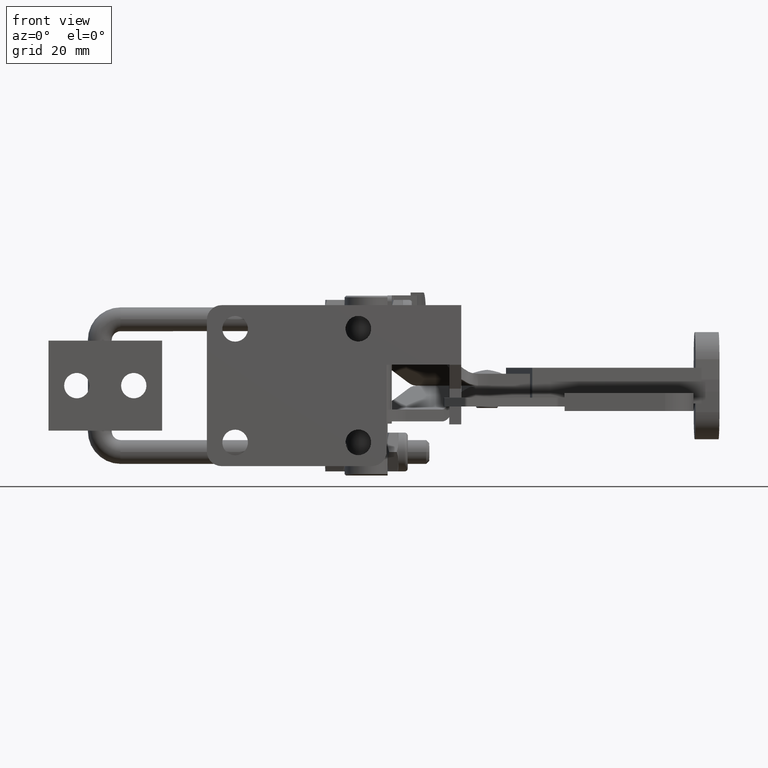
[diagram: clean part render]
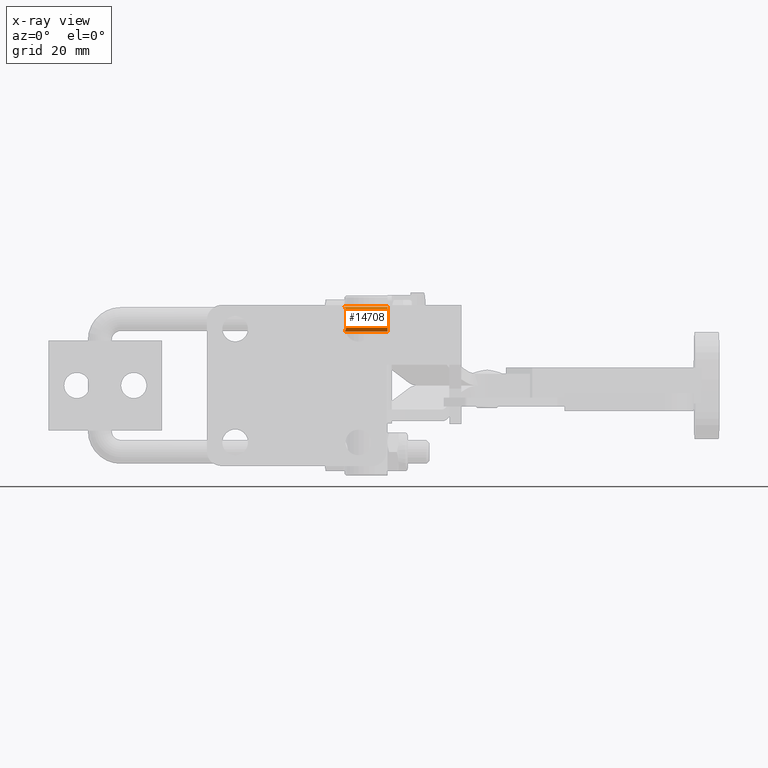
[diagram: x-ray — body ghosted, one internal face saturated and labeled with its STEP entity id]
A machine part, front view, then the same camera in x-ray: the body is ghosted and one INTERNAL B-rep face — a face not visible from any outside direction — is saturated and labeled: STEP entity #14708.
In plain terms, the highlighted cylindrical surface (edge-blend (fillet) strip) has radius 4.15 mm, axis along (1, -0.0064, 0).
Its self-contained STEP definition (entity closure, byte-faithful):
#214 = CARTESIAN_POINT ( 'NONE',  ( 46.21052842618281900, 22.59631237491669600, 26.39999999999997700 ) ) ;
#263 = CARTESIAN_POINT ( 'NONE',  ( 47.11993625435486900, 19.14256908943635000, 20.39767684190727300 ) ) ;
#314 = CARTESIAN_POINT ( 'NONE',  ( 46.61350516073486700, 20.32445666983163000, 18.96106573919030000 ) ) ;
#928 = VERTEX_POINT ( 'NONE', #9760 ) ;
#1403 = CARTESIAN_POINT ( 'NONE',  ( 46.22369280898651300, 22.31576002700079200, 26.37170119858102200 ) ) ;
#1418 = AXIS2_PLACEMENT_3D ( 'NONE', #10223, #1993, #4338 ) ;
#1463 = CARTESIAN_POINT ( 'NONE',  ( 47.36366648088463900, 18.71428541655567200, 21.98073937891798800 ) ) ;
#1502 = VECTOR ( 'NONE', #14113, 999.9999999999998900 ) ;
#1509 = CARTESIAN_POINT ( 'NONE',  ( 46.41802485727175300, 21.01155030266013000, 18.52993668177546400 ) ) ;
#1993 = DIRECTION ( 'NONE',  ( -0.9999793401632586200, 0.006428004873534682300, -2.459677983326398100E-016 ) ) ;
#2325 = VERTEX_POINT ( 'NONE', #13342 ) ;
#2588 = CARTESIAN_POINT ( 'NONE',  ( 46.31663972864554800, 21.51494458329998900, 26.18159717212289900 ) ) ;
#2635 = CARTESIAN_POINT ( 'NONE',  ( 46.68584703365752400, 20.11927381339775800, 19.13034177705671400 ) ) ;
#2657 = B_SPLINE_CURVE_WITH_KNOTS ( 'NONE', 3,
 ( #13074, #214, #1403, #4862, #2588, #6048, #3734, #7207, #4924, #8427, #6087, #9598, #7274, #11987, #8469, #13182, #9657, #1463, #10873, #14373, #12039, #263, #13240, #4971, #14416, #2635, #314, #3786, #1509, #10815, #2689, #7329, #3843, #10909 ),
 .UNSPECIFIED., .F., .F.,
 ( 4, 2, 2, 2, 2, 2, 2, 2, 2, 2, 2, 2, 2, 2, 2, 2, 4 ),
 ( 0.01322777042476134900, 0.01405278050431438800, 0.01487779058386742700, 0.01570280066342046700, 0.01652781074297350600, 0.01735282082252654500, 0.01817783090207958400, 0.01900284098163262200, 0.01982785106118566100, 0.02065286114073870000, 0.02147787122029173900, 0.02230288129984477800, 0.02312789137939781600, 0.02395290145895085500, 0.02477791153850389700, 0.02560292161805693600, 0.02642793169760997500 ),
 .UNSPECIFIED. ) ;
#2672 = AXIS2_PLACEMENT_3D ( 'NONE', #13535, #5722, #5591 ) ;
#2689 = CARTESIAN_POINT ( 'NONE',  ( 46.27760373575897300, 21.77054044639954400, 18.23922162184953100 ) ) ;
#2926 = ORIENTED_EDGE ( 'NONE', *, *, #5164, .F. ) ;
#3130 = EDGE_CURVE ( 'NONE', #13711, #13866, #10955, .T. ) ;
#3639 = FACE_OUTER_BOUND ( 'NONE', #7578, .T. ) ;
#3677 = CIRCLE ( 'NONE', #2672, 4.150000000000002100 ) ;
#3734 = CARTESIAN_POINT ( 'NONE',  ( 46.47898601514917500, 20.77221977283571900, 25.84054129171901300 ) ) ;
#3745 = ORIENTED_EDGE ( 'NONE', *, *, #10237, .F. ) ;
#3786 = CARTESIAN_POINT ( 'NONE',  ( 46.47963002926187000, 20.76981183573420300, 18.66084880077856000 ) ) ;
#3813 = ORIENTED_EDGE ( 'NONE', *, *, #3130, .F. ) ;
#3843 = CARTESIAN_POINT ( 'NONE',  ( 46.21050624307964900, 22.59286143713657700, 18.10000000000000900 ) ) ;
#4338 = DIRECTION ( 'NONE',  ( -0.006428004873534393400, -0.9999793401632585100, 0.0000000000000000000 ) ) ;
#4862 = CARTESIAN_POINT ( 'NONE',  ( 46.27677266428661100, 21.77721428791669600, 26.26247675595670500 ) ) ;
#4885 = LINE ( 'NONE', #13929, #7641 ) ;
#4897 = DIRECTION ( 'NONE',  ( 0.0000000000000000000, 0.0000000000000000000, -1.000000000000000000 ) ) ;
#4924 = CARTESIAN_POINT ( 'NONE',  ( 46.68644555497606100, 20.11767321813493200, 25.36819131271065000 ) ) ;
#4971 = CARTESIAN_POINT ( 'NONE',  ( 46.91041994311421300, 19.56981917499489400, 19.71653101022462100 ) ) ;
#5036 = CARTESIAN_POINT ( 'NONE',  ( 23.96276122530730000, 23.01517241247579900, 22.24999999999998600 ) ) ;
#5065 = DIRECTION ( 'NONE',  ( 0.9999793401632585100, -0.006428004873534802000, 2.459677983326407500E-016 ) ) ;
#5164 = EDGE_CURVE ( 'NONE', #10436, #2325, #2657, .T. ) ;
#5407 = ORIENTED_EDGE ( 'NONE', *, *, #10331, .T. ) ;
#5461 = ORIENTED_EDGE ( 'NONE', *, *, #12008, .F. ) ;
#5591 = DIRECTION ( 'NONE',  ( -0.006428004873534393400, -0.9999793401632585100, 0.0000000000000000000 ) ) ;
#5722 = DIRECTION ( 'NONE',  ( -0.9999793401632586200, 0.006428004873534682300, -2.459677983326398100E-016 ) ) ;
#6048 = CARTESIAN_POINT ( 'NONE',  ( 46.41847015411861600, 21.00918409078768800, 25.96914033045234400 ) ) ;
#6087 = CARTESIAN_POINT ( 'NONE',  ( 46.90924113069236500, 19.57238624934709700, 24.78691924940331500 ) ) ;
#7207 = CARTESIAN_POINT ( 'NONE',  ( 46.61266236964297600, 20.32699774268045400, 25.54087775193809800 ) ) ;
#7274 = CARTESIAN_POINT ( 'NONE',  ( 47.11953863751801900, 19.14337134978281100, 24.10334447714463800 ) ) ;
#7329 = CARTESIAN_POINT ( 'NONE',  ( 46.22383731643338900, 22.31256740443772200, 18.12860769706210500 ) ) ;
#7578 = EDGE_LOOP ( 'NONE', ( #2926, #5407, #3813, #3745, #5461 ) ) ;
#7641 = VECTOR ( 'NONE', #13815, 999.9999999999998900 ) ;
#8036 = CYLINDRICAL_SURFACE ( 'NONE', #10104, 4.149999999999983500 ) ;
#8069 = LINE ( 'NONE', #14007, #1502 ) ;
#8427 = CARTESIAN_POINT ( 'NONE',  ( 46.83446834341737000, 19.74136829546099700, 24.99167870187128300 ) ) ;
#8469 = CARTESIAN_POINT ( 'NONE',  ( 47.28042702880694700, 18.85376362214378100, 23.34906713113869600 ) ) ;
#9598 = CARTESIAN_POINT ( 'NONE',  ( 47.05222665993528600, 19.27238819563621400, 24.34176882469056500 ) ) ;
#9657 = CARTESIAN_POINT ( 'NONE',  ( 47.36320097315272200, 18.71505040402857400, 22.53075915812394200 ) ) ;
#9760 = CARTESIAN_POINT ( 'NONE',  ( 60.61200404229085600, 22.77958603386074900, 18.10000000000001200 ) ) ;
#10104 = AXIS2_PLACEMENT_3D ( 'NONE', #5036, #5065, #4897 ) ;
#10223 = CARTESIAN_POINT ( 'NONE',  ( 60.61200404229085600, 22.77958603386075300, 22.24999999999999300 ) ) ;
#10237 = EDGE_CURVE ( 'NONE', #928, #13711, #3677, .T. ) ;
#10331 = EDGE_CURVE ( 'NONE', #10436, #13866, #8069, .T. ) ;
#10436 = VERTEX_POINT ( 'NONE', #12379 ) ;
#10815 = CARTESIAN_POINT ( 'NONE',  ( 46.31745812071540800, 21.51072589439167600, 18.32010425609031400 ) ) ;
#10873 = CARTESIAN_POINT ( 'NONE',  ( 47.34653517033512300, 18.74207494168356200, 21.70077023065400800 ) ) ;
#10909 = CARTESIAN_POINT ( 'NONE',  ( 46.21230154393985100, 22.87214930403964900, 18.10000000000000500 ) ) ;
#10955 = CIRCLE ( 'NONE', #1418, 4.150000000000002100 ) ;
#11987 = CARTESIAN_POINT ( 'NONE',  ( 47.23328184996013600, 18.93479581898213800, 23.60800051251429800 ) ) ;
#12008 = EDGE_CURVE ( 'NONE', #2325, #928, #4885, .T. ) ;
#12039 = CARTESIAN_POINT ( 'NONE',  ( 47.23510962105692800, 18.93151872271272400, 20.90068341841388400 ) ) ;
#12056 = CARTESIAN_POINT ( 'NONE',  ( 60.61200404229085600, 22.77958603386074900, 26.39999999999997700 ) ) ;
#12379 = CARTESIAN_POINT ( 'NONE',  ( 46.21230154393985900, 22.87214930403963100, 26.39999999999997400 ) ) ;
#13074 = CARTESIAN_POINT ( 'NONE',  ( 46.21230154393985900, 22.87214930403963100, 26.39999999999997400 ) ) ;
#13182 = CARTESIAN_POINT ( 'NONE',  ( 47.34615363724973500, 18.74268991450411900, 22.80496222581204800 ) ) ;
#13240 = CARTESIAN_POINT ( 'NONE',  ( 47.05271809511468500, 19.27145203001794000, 20.15998341483075900 ) ) ;
#13323 = CARTESIAN_POINT ( 'NONE',  ( 60.58532782206568600, 18.62967177218322900, 22.24999999999999300 ) ) ;
#13342 = CARTESIAN_POINT ( 'NONE',  ( 46.21230154393985100, 22.87214930403964900, 18.10000000000000500 ) ) ;
#13535 = CARTESIAN_POINT ( 'NONE',  ( 60.61200404229085600, 22.77958603386075300, 22.24999999999999300 ) ) ;
#13711 = VERTEX_POINT ( 'NONE', #13323 ) ;
#13815 = DIRECTION ( 'NONE',  ( 0.9999793401632585100, -0.006428004873534802000, 2.459677983326407000E-016 ) ) ;
#13866 = VERTEX_POINT ( 'NONE', #12056 ) ;
#13929 = CARTESIAN_POINT ( 'NONE',  ( 23.96276122530730000, 23.01517241247579900, 18.10000000000000100 ) ) ;
#14007 = CARTESIAN_POINT ( 'NONE',  ( 23.96276122530730000, 23.01517241247579900, 26.39999999999997000 ) ) ;
#14113 = DIRECTION ( 'NONE',  ( 0.9999793401632585100, -0.006428004873534802000, 2.459677983326407000E-016 ) ) ;
#14373 = CARTESIAN_POINT ( 'NONE',  ( 47.28194381691705000, 18.85117141830677300, 21.16098949549222000 ) ) ;
#14416 = CARTESIAN_POINT ( 'NONE',  ( 46.83424414126806600, 19.74185967237397000, 19.50769582556678500 ) ) ;
#14708 = ADVANCED_FACE ( 'NONE', ( #3639 ), #8036, .F. ) ;